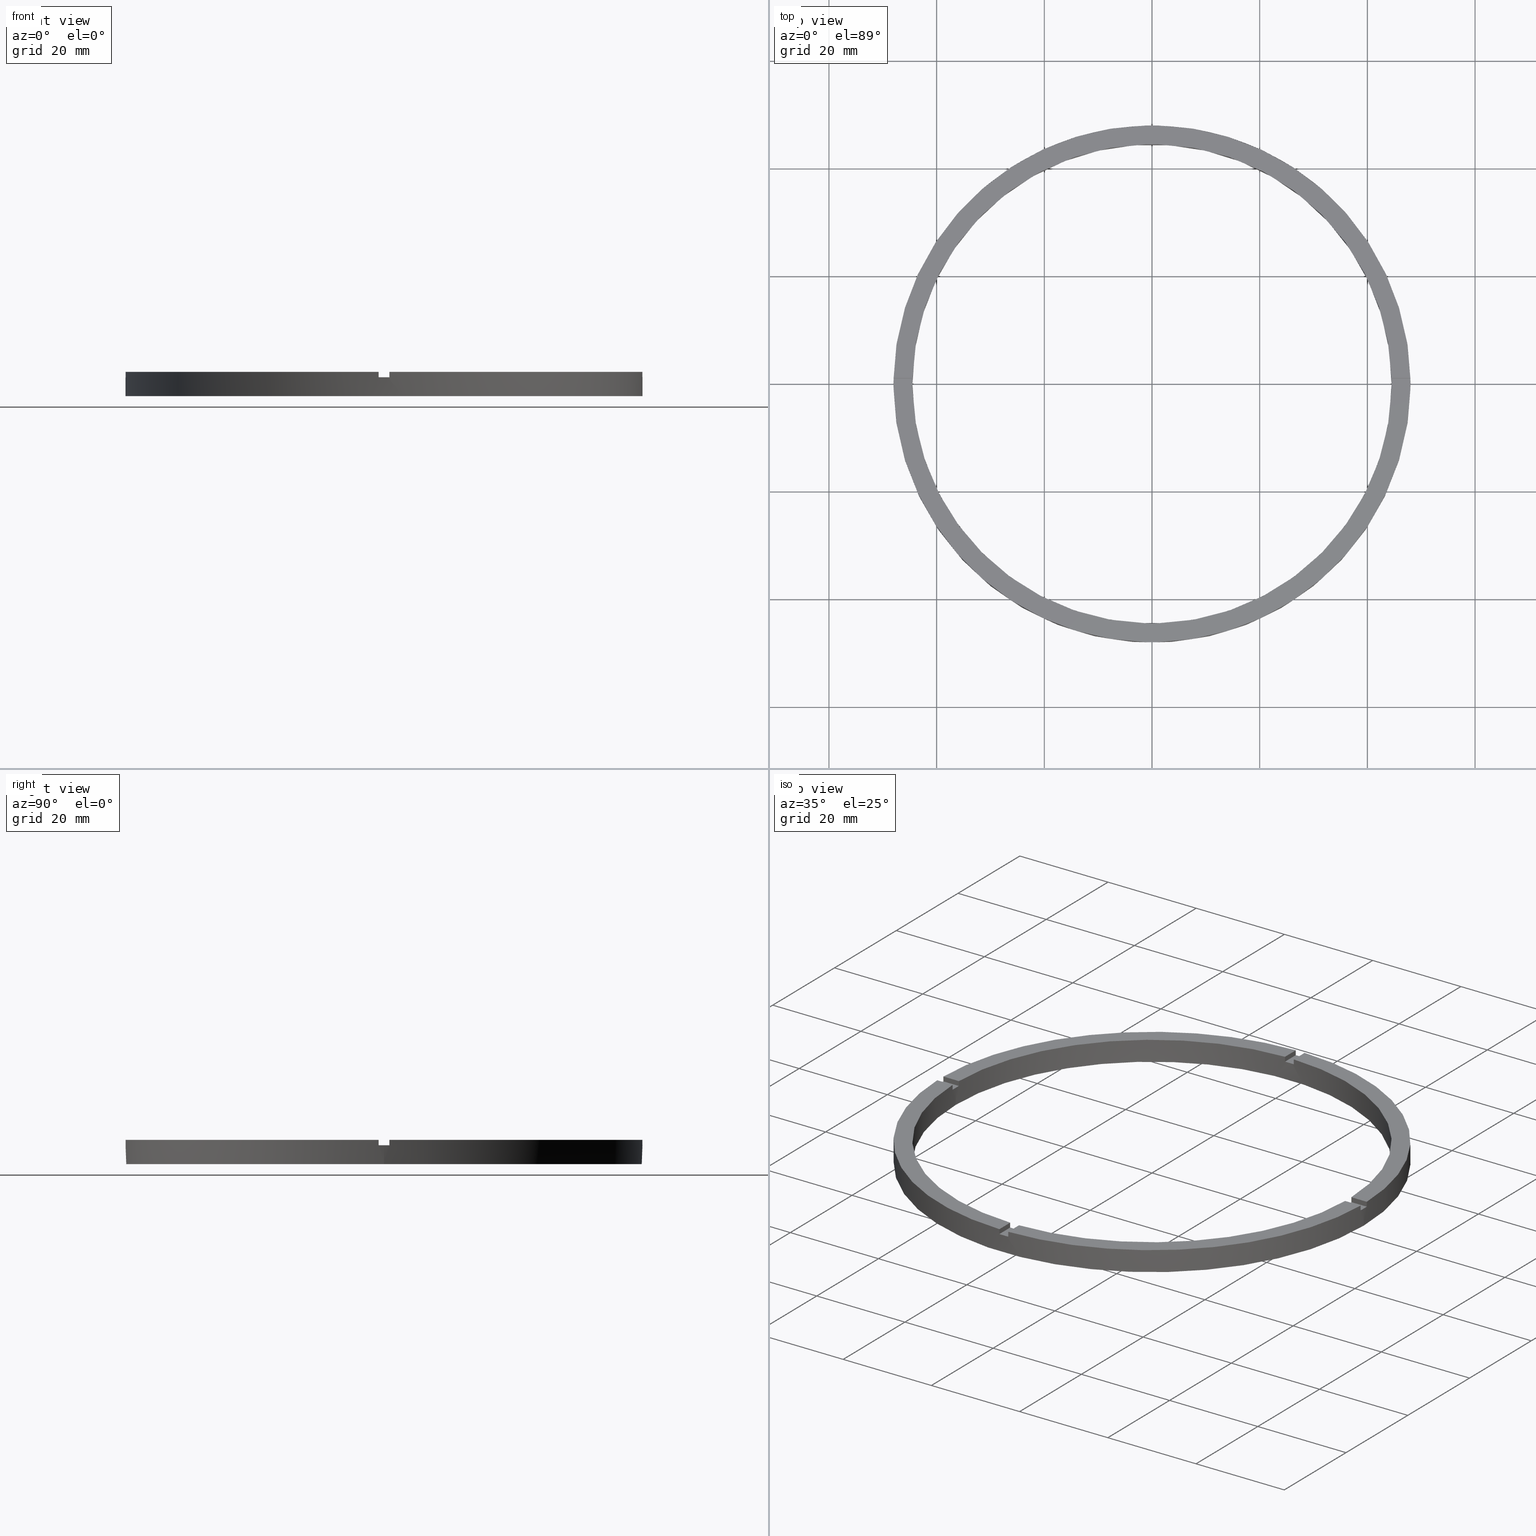
[diagram: canonical four-view strip — front | top / right | iso, engineering-drawing reading convention]
A machine part, canonical four-view strip (front | top / right | iso — engineering-drawing reading convention). The complete STEP part file that produces these views, byte-faithful:
ISO-10303-21;
HEADER;
FILE_DESCRIPTION (( 'STEP AP203' ),
    '1' );
FILE_NAME ('514196.step',
    '2024-12-26T02:46:58',
    ( 'MSI' ),
    ( '' ),
    'SwSTEP 2.0',
    'SolidWorks 2020',
    '' );
FILE_SCHEMA (( 'CONFIG_CONTROL_DESIGN' ));
ENDSEC;

DATA;
#1 = VERTEX_POINT ( 'NONE', #412 ) ;
#2 = EDGE_LOOP ( 'NONE', ( #511, #699, #708, #525 ) ) ;
#3 = CIRCLE ( 'NONE', #638, 48.00000000000000711 ) ;
#4 = VECTOR ( 'NONE', #209, 1000.000000000000000 ) ;
#5 = ORIENTED_EDGE ( 'NONE', *, *, #87, .T. ) ;
#6 = VECTOR ( 'NONE', #133, 1000.000000000000000 ) ;
#7 = CC_DESIGN_PERSON_AND_ORGANIZATION_ASSIGNMENT ( #325, #131, ( #144 ) ) ;
#8 = CARTESIAN_POINT ( 'NONE',  ( 38.00000000000000000, -1.000000000000156097, 4.500000000000000000 ) ) ;
#9 = ORIENTED_EDGE ( 'NONE', *, *, #677, .T. ) ;
#10 = CARTESIAN_POINT ( 'NONE',  ( 0.000000000000000000, 0.000000000000000000, 4.500000000000000000 ) ) ;
#11 = EDGE_LOOP ( 'NONE', ( #658, #297, #229, #662, #458, #395, #508, #664, #455, #175, #448, #484 ) ) ;
#12 = PERSON_AND_ORGANIZATION ( #84, #327 ) ;
#13 = ORIENTED_EDGE ( 'NONE', *, *, #40, .T. ) ;
#14 = CARTESIAN_POINT ( 'NONE',  ( -1.000000000000158540, -38.00000000000018474, 3.499999999999999556 ) ) ;
#15 = DIRECTION ( 'NONE',  ( 1.951563910473907735E-16, -1.000000000000000000, 0.000000000000000000 ) ) ;
#16 = APPROVAL_PERSON_ORGANIZATION ( #12, #258, #380 ) ;
#17 = CALENDAR_DATE ( 2024, 26, 12 ) ;
#18 = VERTEX_POINT ( 'NONE', #692 ) ;
#19 = EDGE_LOOP ( 'NONE', ( #34, #422, #546, #720 ) ) ;
#20 = DIRECTION ( 'NONE',  ( 0.000000000000000000, 0.000000000000000000, 1.000000000000000000 ) ) ;
#21 = EDGE_CURVE ( 'NONE', #555, #523, #159, .T. ) ;
#22 = DATE_AND_TIME ( #295, #560 ) ;
#23 = COORDINATED_UNIVERSAL_TIME_OFFSET ( 8, 0, .AHEAD. ) ;
#24 = ORIENTED_EDGE ( 'NONE', *, *, #564, .F. ) ;
#25 = ORIENTED_EDGE ( 'NONE', *, *, #315, .T. ) ;
#26 = CARTESIAN_POINT ( 'NONE',  ( 48.00000000000000711, 5.878304635907296578E-15, 4.500000000000000000 ) ) ;
#27 = EDGE_LOOP ( 'NONE', ( #485, #566, #305, #205 ) ) ;
#28 = PERSON_AND_ORGANIZATION_ROLE ( 'creator' ) ;
#29 = CARTESIAN_POINT ( 'NONE',  ( 0.9999999999998423483, -44.48876262608346366, 3.499999999999999556 ) ) ;
#30 = VERTEX_POINT ( 'NONE', #751 ) ;
#31 = FACE_OUTER_BOUND ( 'NONE', #519, .T. ) ;
#32 = DIRECTION ( 'NONE',  ( -6.505213034913025371E-17, 1.000000000000000000, 0.000000000000000000 ) ) ;
#33 = PERSON_AND_ORGANIZATION ( #84, #327 ) ;
#34 = ORIENTED_EDGE ( 'NONE', *, *, #103, .F. ) ;
#35 = LINE ( 'NONE', #26, #320 ) ;
#36 = APPROVAL_PERSON_ORGANIZATION ( #307, #645, #342 ) ;
#37 = ORIENTED_EDGE ( 'NONE', *, *, #219, .T. ) ;
#38 = CARTESIAN_POINT ( 'NONE',  ( 0.000000000000000000, 0.000000000000000000, 3.499999999999999556 ) ) ;
#39 = AXIS2_PLACEMENT_3D ( 'NONE', #643, #611, #653 ) ;
#40 = EDGE_CURVE ( 'NONE', #215, #184, #443, .T. ) ;
#41 = APPROVAL_DATE_TIME ( #570, #645 ) ;
#42 = PLANE ( 'NONE',  #499 ) ;
#43 = CALENDAR_DATE ( 2024, 26, 12 ) ;
#44 = DATE_AND_TIME ( #43, #589 ) ;
#45 = CARTESIAN_POINT ( 'NONE',  ( -1.000000000000026423, 38.00000000000000711, 3.499999999999999556 ) ) ;
#46 = DIRECTION ( 'NONE',  ( 0.000000000000000000, 0.000000000000000000, 1.000000000000000000 ) ) ;
#47 = DIRECTION ( 'NONE',  ( 0.000000000000000000, 0.000000000000000000, 1.000000000000000000 ) ) ;
#48 = SHAPE_DEFINITION_REPRESENTATION ( #310, #568 ) ;
#49 = DIRECTION ( 'NONE',  ( 1.000000000000000000, 0.000000000000000000, 0.000000000000000000 ) ) ;
#50 = EDGE_CURVE ( 'NONE', #482, #127, #700, .T. ) ;
#51 = CARTESIAN_POINT ( 'NONE',  ( -1.000000000000157208, -47.98958220280731268, 4.500000000000000000 ) ) ;
#52 = DIRECTION ( 'NONE',  ( 1.000000000000000000, 6.505213034913025371E-17, 0.000000000000000000 ) ) ;
#53 = CARTESIAN_POINT ( 'NONE',  ( -1.000000000000026423, 44.48876262608345655, 4.500000000000000000 ) ) ;
#54 = DIRECTION ( 'NONE',  ( 0.000000000000000000, 0.000000000000000000, 1.000000000000000000 ) ) ;
#55 = DIRECTION ( 'NONE',  ( -0.000000000000000000, -1.000000000000000000, -0.000000000000000000 ) ) ;
#56 = EDGE_CURVE ( 'NONE', #729, #18, #445, .T. ) ;
#57 = PERSON_AND_ORGANIZATION ( #84, #327 ) ;
#58 = CALENDAR_DATE ( 2024, 26, 12 ) ;
#59 = DIRECTION ( 'NONE',  ( 1.301042606982605074E-16, -1.000000000000000000, 0.000000000000000000 ) ) ;
#60 = DATE_AND_TIME ( #58, #604 ) ;
#61 = DIRECTION ( 'NONE',  ( -1.000000000000000000, 0.000000000000000000, 0.000000000000000000 ) ) ;
#62 = DIRECTION ( 'NONE',  ( -1.000000000000000000, -6.505213034913025371E-17, -0.000000000000000000 ) ) ;
#63 = CARTESIAN_POINT ( 'NONE',  ( 0.000000000000000000, 0.000000000000000000, 4.500000000000000000 ) ) ;
#64 = CARTESIAN_POINT ( 'NONE',  ( -1.000000000000026423, 47.98958220280731268, 4.500000000000000000 ) ) ;
#65 = ADVANCED_FACE ( 'NONE', ( #476 ), #726, .F. ) ;
#66 = AXIS2_PLACEMENT_3D ( 'NONE', #153, #676, #228 ) ;
#67 = CARTESIAN_POINT ( 'NONE',  ( -47.98958220280731268, 0.9999999999999692468, 4.500000000000000000 ) ) ;
#68 = PLANE ( 'NONE',  #148 ) ;
#69 = CARTESIAN_POINT ( 'NONE',  ( 44.48876262608346366, 0.9999999999998443467, 4.500000000000000000 ) ) ;
#70 = CARTESIAN_POINT ( 'NONE',  ( 0.000000000000000000, 0.000000000000000000, 0.000000000000000000 ) ) ;
#71 = DIRECTION ( 'NONE',  ( -1.000000000000000000, -6.505213034913025371E-17, 0.000000000000000000 ) ) ;
#72 = CC_DESIGN_APPROVAL ( #563, ( #359 ) ) ;
#73 = EDGE_CURVE ( 'NONE', #731, #1, #468, .T. ) ;
#74 = DIRECTION ( 'NONE',  ( -0.000000000000000000, -0.000000000000000000, -1.000000000000000000 ) ) ;
#75 = EDGE_CURVE ( 'NONE', #165, #482, #181, .T. ) ;
#76 = DIRECTION ( 'NONE',  ( -0.000000000000000000, -0.000000000000000000, -1.000000000000000000 ) ) ;
#77 = DIRECTION ( 'NONE',  ( 0.000000000000000000, 0.000000000000000000, 1.000000000000000000 ) ) ;
#78 = ADVANCED_FACE ( 'NONE', ( #481 ), #194, .T. ) ;
#79 = VECTOR ( 'NONE', #678, 1000.000000000000000 ) ;
#80 = AXIS2_PLACEMENT_3D ( 'NONE', #495, #147, #408 ) ;
#81 = PLANE ( 'NONE',  #616 ) ;
#82 = EDGE_CURVE ( 'NONE', #210, #184, #479, .T. ) ;
#83 = VECTOR ( 'NONE', #435, 1000.000000000000000 ) ;
#84 = PERSON ( 'δָ��', 'δָ��', 'δָ��', ('δָ��'), ('δָ��'), ('δָ��') ) ;
#85 = VECTOR ( 'NONE', #574, 1000.000000000000000 ) ;
#86 = CARTESIAN_POINT ( 'NONE',  ( -44.48876262608345655, 0.9999999999999699130, 4.500000000000000000 ) ) ;
#87 = EDGE_CURVE ( 'NONE', #139, #559, #112, .T. ) ;
#88 = DIRECTION ( 'NONE',  ( -0.000000000000000000, -0.000000000000000000, -1.000000000000000000 ) ) ;
#89 = DIRECTION ( 'NONE',  ( 1.000000000000000000, 1.301042606982605074E-16, 0.000000000000000000 ) ) ;
#90 = AXIS2_PLACEMENT_3D ( 'NONE', #230, #317, #500 ) ;
#91 = PLANE ( 'NONE',  #667 ) ;
#92 = DIRECTION ( 'NONE',  ( 1.000000000000000000, 0.000000000000000000, 0.000000000000000000 ) ) ;
#93 = CARTESIAN_POINT ( 'NONE',  ( 0.000000000000000000, 0.000000000000000000, 0.000000000000000000 ) ) ;
#94 = AXIS2_PLACEMENT_3D ( 'NONE', #417, #719, #426 ) ;
#95 = CARTESIAN_POINT ( 'NONE',  ( 0.9999999999998423483, -44.48876262608346366, 4.500000000000000000 ) ) ;
#96 = CIRCLE ( 'NONE', #736, 48.00000000000000711 ) ;
#97 = DIRECTION ( 'NONE',  ( 0.000000000000000000, 0.000000000000000000, 1.000000000000000000 ) ) ;
#98 = CARTESIAN_POINT ( 'NONE',  ( 38.00000000000000000, 0.9999999999998439026, 3.499999999999999556 ) ) ;
#99 = LINE ( 'NONE', #115, #374 ) ;
#100 = EDGE_CURVE ( 'NONE', #18, #252, #665, .T. ) ;
#101 = DIRECTION ( 'NONE',  ( -1.951563910473907735E-16, 1.000000000000000000, 0.000000000000000000 ) ) ;
#102 = VECTOR ( 'NONE', #185, 1000.000000000000000 ) ;
#103 = EDGE_CURVE ( 'NONE', #215, #155, #385, .T. ) ;
#104 = DIRECTION ( 'NONE',  ( 1.000000000000000000, 0.000000000000000000, 0.000000000000000000 ) ) ;
#105 = CIRCLE ( 'NONE', #351, 48.00000000000000711 ) ;
#106 = PLANE ( 'NONE',  #281 ) ;
#107 = FACE_OUTER_BOUND ( 'NONE', #393, .T. ) ;
#108 = LINE ( 'NONE', #335, #83 ) ;
#109 = CARTESIAN_POINT ( 'NONE',  ( -38.00000000000019185, -1.000000000000028866, 3.499999999999999556 ) ) ;
#110 = DIRECTION ( 'NONE',  ( -1.000000000000000000, -1.951563910473907735E-16, 0.000000000000000000 ) ) ;
#111 = EDGE_CURVE ( 'NONE', #778, #449, #394, .T. ) ;
#112 = LINE ( 'NONE', #109, #399 ) ;
#113 = CIRCLE ( 'NONE', #639, 48.00000000000000711 ) ;
#114 = AXIS2_PLACEMENT_3D ( 'NONE', #670, #722, #367 ) ;
#115 = CARTESIAN_POINT ( 'NONE',  ( -1.000000000000158540, -38.00000000000018474, 4.500000000000000000 ) ) ;
#116 = ADVANCED_FACE ( 'NONE', ( #128 ), #264, .T. ) ;
#117 = FACE_OUTER_BOUND ( 'NONE', #257, .T. ) ;
#118 = ORIENTED_EDGE ( 'NONE', *, *, #591, .T. ) ;
#119 = CARTESIAN_POINT ( 'NONE',  ( -47.98958220280731268, -1.000000000000030864, 4.500000000000000000 ) ) ;
#120 = FACE_OUTER_BOUND ( 'NONE', #698, .T. ) ;
#121 = EDGE_LOOP ( 'NONE', ( #452, #25, #269, #573 ) ) ;
#122 = FACE_OUTER_BOUND ( 'NONE', #739, .T. ) ;
#123 = ORIENTED_EDGE ( 'NONE', *, *, #21, .T. ) ;
#124 = EDGE_CURVE ( 'NONE', #557, #165, #403, .T. ) ;
#125 = LINE ( 'NONE', #224, #660 ) ;
#126 = VECTOR ( 'NONE', #352, 1000.000000000000000 ) ;
#127 = VERTEX_POINT ( 'NONE', #684 ) ;
#128 = FACE_OUTER_BOUND ( 'NONE', #492, .T. ) ;
#129 = CC_DESIGN_PERSON_AND_ORGANIZATION_ASSIGNMENT ( #299, #536, ( #474 ) ) ;
#130 = DIRECTION ( 'NONE',  ( -1.000000000000000000, 0.000000000000000000, 0.000000000000000000 ) ) ;
#131 = PERSON_AND_ORGANIZATION_ROLE ( 'design_owner' ) ;
#132 = DIRECTION ( 'NONE',  ( -0.000000000000000000, 0.000000000000000000, 1.000000000000000000 ) ) ;
#133 = DIRECTION ( 'NONE',  ( -1.000000000000000000, -1.951563910473907735E-16, 0.000000000000000000 ) ) ;
#134 = CARTESIAN_POINT ( 'NONE',  ( 47.98958220280731979, 0.9999999999998445688, 3.499999999999999556 ) ) ;
#135 = PLANE ( 'NONE',  #640 ) ;
#136 = DIRECTION ( 'NONE',  ( 6.505213034913025371E-17, -1.000000000000000000, 0.000000000000000000 ) ) ;
#137 = CARTESIAN_POINT ( 'NONE',  ( 0.000000000000000000, 0.000000000000000000, 4.500000000000000000 ) ) ;
#138 = AXIS2_PLACEMENT_3D ( 'NONE', #636, #179, #192 ) ;
#139 = VERTEX_POINT ( 'NONE', #245 ) ;
#140 = DIRECTION ( 'NONE',  ( -0.000000000000000000, -0.000000000000000000, -1.000000000000000000 ) ) ;
#141 = EDGE_LOOP ( 'NONE', ( #223, #167, #178, #453, #514, #150, #478, #762, #464, #217, #733, #752 ) ) ;
#142 = DIRECTION ( 'NONE',  ( 1.000000000000000000, 0.000000000000000000, -0.000000000000000000 ) ) ;
#143 = AXIS2_PLACEMENT_3D ( 'NONE', #732, #430, #747 ) ;
#144 = PRODUCT ( '514196', '514196', '', ( #522 ) ) ;
#145 = DIRECTION ( 'NONE',  ( 1.000000000000000000, 0.000000000000000000, 0.000000000000000000 ) ) ;
#146 = PERSON_AND_ORGANIZATION_ROLE ( 'design_supplier' ) ;
#147 = DIRECTION ( 'NONE',  ( 0.000000000000000000, 0.000000000000000000, 1.000000000000000000 ) ) ;
#148 = AXIS2_PLACEMENT_3D ( 'NONE', #520, #15, #595 ) ;
#149 = CARTESIAN_POINT ( 'NONE',  ( 0.000000000000000000, 0.000000000000000000, 3.499999999999999556 ) ) ;
#150 = ORIENTED_EDGE ( 'NONE', *, *, #578, .T. ) ;
#151 = MANIFOLD_SOLID_BREP ( '�г�-����1', #275 ) ;
#152 = ORIENTED_EDGE ( 'NONE', *, *, #344, .T. ) ;
#153 = CARTESIAN_POINT ( 'NONE',  ( 0.000000000000000000, 0.000000000000000000, 0.000000000000000000 ) ) ;
#154 = PLANE ( 'NONE',  #411 ) ;
#155 = VERTEX_POINT ( 'NONE', #444 ) ;
#156 = CC_DESIGN_DATE_AND_TIME_ASSIGNMENT ( #44, #535, ( #682 ) ) ;
#157 = EDGE_CURVE ( 'NONE', #1, #731, #388, .T. ) ;
#158 = DIRECTION ( 'NONE',  ( -1.000000000000000000, 0.000000000000000000, 0.000000000000000000 ) ) ;
#159 = LINE ( 'NONE', #53, #161 ) ;
#160 = DIRECTION ( 'NONE',  ( 0.000000000000000000, 0.000000000000000000, 1.000000000000000000 ) ) ;
#161 = VECTOR ( 'NONE', #140, 1000.000000000000000 ) ;
#162 = DIRECTION ( 'NONE',  ( -0.000000000000000000, -0.000000000000000000, -1.000000000000000000 ) ) ;
#163 = CARTESIAN_POINT ( 'NONE',  ( -38.00000000000019185, 0.9999999999999711342, 4.500000000000000000 ) ) ;
#164 = VECTOR ( 'NONE', #423, 1000.000000000000000 ) ;
#165 = VERTEX_POINT ( 'NONE', #370 ) ;
#166 = VERTEX_POINT ( 'NONE', #332 ) ;
#167 = ORIENTED_EDGE ( 'NONE', *, *, #723, .T. ) ;
#168 = ORIENTED_EDGE ( 'NONE', *, *, #100, .T. ) ;
#169 = ORIENTED_EDGE ( 'NONE', *, *, #615, .F. ) ;
#170 = EDGE_LOOP ( 'NONE', ( #738, #685, #470, #548 ) ) ;
#171 = EDGE_CURVE ( 'NONE', #491, #559, #663, .T. ) ;
#172 = ORIENTED_EDGE ( 'NONE', *, *, #259, .T. ) ;
#173 = PLANE ( 'NONE',  #697 ) ;
#174 = ORIENTED_EDGE ( 'NONE', *, *, #564, .T. ) ;
#175 = ORIENTED_EDGE ( 'NONE', *, *, #646, .F. ) ;
#176 = ORIENTED_EDGE ( 'NONE', *, *, #300, .F. ) ;
#177 = EDGE_CURVE ( 'NONE', #429, #462, #113, .T. ) ;
#178 = ORIENTED_EDGE ( 'NONE', *, *, #282, .F. ) ;
#179 = DIRECTION ( 'NONE',  ( 0.000000000000000000, 0.000000000000000000, 1.000000000000000000 ) ) ;
#180 = ORIENTED_EDGE ( 'NONE', *, *, #75, .F. ) ;
#181 = CIRCLE ( 'NONE', #287, 44.50000000000000711 ) ;
#182 = DIRECTION ( 'NONE',  ( -1.000000000000000000, -6.505213034913025371E-17, -0.000000000000000000 ) ) ;
#183 = ORIENTED_EDGE ( 'NONE', *, *, #442, .T. ) ;
#184 = VERTEX_POINT ( 'NONE', #29 ) ;
#185 = DIRECTION ( 'NONE',  ( -0.000000000000000000, -0.000000000000000000, -1.000000000000000000 ) ) ;
#186 = ORIENTED_EDGE ( 'NONE', *, *, #683, .T. ) ;
#187 = ORIENTED_EDGE ( 'NONE', *, *, #267, .T. ) ;
#188 = DATE_TIME_ROLE ( 'creation_date' ) ;
#189 = CARTESIAN_POINT ( 'NONE',  ( 48.00000000000000711, 5.878304635907296578E-15, 3.499999999999999556 ) ) ;
#190 =( LENGTH_UNIT ( ) NAMED_UNIT ( * ) SI_UNIT ( .MILLI., .METRE. ) );
#191 = ORIENTED_EDGE ( 'NONE', *, *, #157, .F. ) ;
#192 = DIRECTION ( 'NONE',  ( 1.000000000000000000, 0.000000000000000000, -0.000000000000000000 ) ) ;
#193 = ADVANCED_FACE ( 'NONE', ( #659 ), #392, .F. ) ;
#194 = CYLINDRICAL_SURFACE ( 'NONE', #386, 48.00000000000000711 ) ;
#195 = ORIENTED_EDGE ( 'NONE', *, *, #505, .T. ) ;
#196 = VERTEX_POINT ( 'NONE', #189 ) ;
#197 = AXIS2_PLACEMENT_3D ( 'NONE', #70, #160, #235 ) ;
#198 = ORIENTED_EDGE ( 'NONE', *, *, #748, .F. ) ;
#199 =( NAMED_UNIT ( * ) PLANE_ANGLE_UNIT ( ) SI_UNIT ( $, .RADIAN. ) );
#200 = ORIENTED_EDGE ( 'NONE', *, *, #344, .F. ) ;
#201 = VERTEX_POINT ( 'NONE', #86 ) ;
#202 = ADVANCED_FACE ( 'NONE', ( #117 ), #641, .F. ) ;
#203 = CARTESIAN_POINT ( 'NONE',  ( 0.9999999999999735767, 38.00000000000000711, 3.499999999999999556 ) ) ;
#204 = ORIENTED_EDGE ( 'NONE', *, *, #50, .F. ) ;
#205 = ORIENTED_EDGE ( 'NONE', *, *, #103, .T. ) ;
#206 = CARTESIAN_POINT ( 'NONE',  ( -1.000000000000026423, 44.48876262608345655, 4.500000000000000000 ) ) ;
#207 = ORIENTED_EDGE ( 'NONE', *, *, #82, .F. ) ;
#208 = EDGE_LOOP ( 'NONE', ( #187, #168 ) ) ;
#209 = DIRECTION ( 'NONE',  ( -0.000000000000000000, -0.000000000000000000, -1.000000000000000000 ) ) ;
#210 = VERTEX_POINT ( 'NONE', #774 ) ;
#211 = CC_DESIGN_APPROVAL ( #645, ( #474 ) ) ;
#212 = EDGE_CURVE ( 'NONE', #742, #709, #389, .T. ) ;
#213 = CARTESIAN_POINT ( 'NONE',  ( 44.48876262608346366, 0.9999999999998443467, 3.499999999999999556 ) ) ;
#214 = DIRECTION ( 'NONE',  ( 0.000000000000000000, 0.000000000000000000, 1.000000000000000000 ) ) ;
#215 = VERTEX_POINT ( 'NONE', #661 ) ;
#216 = DIRECTION ( 'NONE',  ( 1.000000000000000000, 0.000000000000000000, -0.000000000000000000 ) ) ;
#217 = ORIENTED_EDGE ( 'NONE', *, *, #584, .T. ) ;
#218 = DIRECTION ( 'NONE',  ( -0.000000000000000000, -1.000000000000000000, -0.000000000000000000 ) ) ;
#219 = EDGE_CURVE ( 'NONE', #778, #498, #657, .T. ) ;
#220 = CARTESIAN_POINT ( 'NONE',  ( 0.000000000000000000, 0.000000000000000000, 4.500000000000000000 ) ) ;
#221 = CARTESIAN_POINT ( 'NONE',  ( 44.48876262608345655, -1.000000000000155653, 4.500000000000000000 ) ) ;
#222 = VECTOR ( 'NONE', #350, 1000.000000000000000 ) ;
#223 = ORIENTED_EDGE ( 'NONE', *, *, #56, .F. ) ;
#224 = CARTESIAN_POINT ( 'NONE',  ( -38.00000000000019185, -1.000000000000028866, 4.500000000000000000 ) ) ;
#225 = VECTOR ( 'NONE', #110, 1000.000000000000000 ) ;
#226 = CIRCLE ( 'NONE', #324, 48.00000000000000711 ) ;
#227 = FACE_OUTER_BOUND ( 'NONE', #263, .T. ) ;
#228 = DIRECTION ( 'NONE',  ( 1.000000000000000000, 0.000000000000000000, 0.000000000000000000 ) ) ;
#229 = ORIENTED_EDGE ( 'NONE', *, *, #629, .T. ) ;
#230 = CARTESIAN_POINT ( 'NONE',  ( 0.000000000000000000, 0.000000000000000000, 4.500000000000000000 ) ) ;
#231 = CIRCLE ( 'NONE', #238, 48.00000000000000711 ) ;
#232 = AXIS2_PLACEMENT_3D ( 'NONE', #93, #415, #428 ) ;
#233 = LINE ( 'NONE', #98, #534 ) ;
#234 = ADVANCED_FACE ( 'NONE', ( #122 ), #613, .T. ) ;
#235 = DIRECTION ( 'NONE',  ( 1.000000000000000000, 0.000000000000000000, 0.000000000000000000 ) ) ;
#236 = VECTOR ( 'NONE', #759, 1000.000000000000000 ) ;
#237 = ORIENTED_EDGE ( 'NONE', *, *, #737, .T. ) ;
#238 = AXIS2_PLACEMENT_3D ( 'NONE', #472, #308, #354 ) ;
#239 = CIRCLE ( 'NONE', #416, 44.50000000000000711 ) ;
#240 = ORIENTED_EDGE ( 'NONE', *, *, #50, .T. ) ;
#241 = EDGE_CURVE ( 'NONE', #429, #30, #125, .T. ) ;
#242 = DIRECTION ( 'NONE',  ( -0.000000000000000000, -0.000000000000000000, -1.000000000000000000 ) ) ;
#243 = VECTOR ( 'NONE', #214, 1000.000000000000000 ) ;
#244 = ORIENTED_EDGE ( 'NONE', *, *, #493, .F. ) ;
#245 = CARTESIAN_POINT ( 'NONE',  ( -47.98958220280731268, -1.000000000000030864, 3.499999999999999556 ) ) ;
#246 = LINE ( 'NONE', #163, #225 ) ;
#247 = EDGE_LOOP ( 'NONE', ( #718, #273, #714, #280 ) ) ;
#248 = ADVANCED_FACE ( 'NONE', ( #120 ), #707, .F. ) ;
#249 = LINE ( 'NONE', #488, #531 ) ;
#250 = EDGE_LOOP ( 'NONE', ( #743, #152, #466, #266 ) ) ;
#251 = LINE ( 'NONE', #606, #761 ) ;
#252 = VERTEX_POINT ( 'NONE', #650 ) ;
#253 = VECTOR ( 'NONE', #88, 1000.000000000000000 ) ;
#254 = CARTESIAN_POINT ( 'NONE',  ( 38.00000000000000000, 0.9999999999998439026, 4.500000000000000000 ) ) ;
#255 = FACE_BOUND ( 'NONE', #208, .T. ) ;
#256 = DIRECTION ( 'NONE',  ( -0.000000000000000000, 0.000000000000000000, 1.000000000000000000 ) ) ;
#257 = EDGE_LOOP ( 'NONE', ( #542, #289, #207, #725 ) ) ;
#258 = APPROVAL ( #337, 'δָ��' ) ;
#259 = EDGE_CURVE ( 'NONE', #490, #523, #361, .T. ) ;
#260 = LINE ( 'NONE', #356, #545 ) ;
#261 = VERTEX_POINT ( 'NONE', #309 ) ;
#262 = CIRCLE ( 'NONE', #675, 44.50000000000000711 ) ;
#263 = EDGE_LOOP ( 'NONE', ( #191, #571 ) ) ;
#264 = PLANE ( 'NONE',  #554 ) ;
#265 = LINE ( 'NONE', #353, #771 ) ;
#266 = ORIENTED_EDGE ( 'NONE', *, *, #689, .F. ) ;
#267 = EDGE_CURVE ( 'NONE', #252, #18, #378, .T. ) ;
#268 = PLANE ( 'NONE',  #138 ) ;
#269 = ORIENTED_EDGE ( 'NONE', *, *, #433, .T. ) ;
#270 = LINE ( 'NONE', #711, #253 ) ;
#271 = ORIENTED_EDGE ( 'NONE', *, *, #618, .F. ) ;
#272 = DIRECTION ( 'NONE',  ( 0.000000000000000000, 0.000000000000000000, 1.000000000000000000 ) ) ;
#273 = ORIENTED_EDGE ( 'NONE', *, *, #406, .F. ) ;
#274 = DIRECTION ( 'NONE',  ( 0.000000000000000000, -0.000000000000000000, 1.000000000000000000 ) ) ;
#275 = CLOSED_SHELL ( 'NONE', ( #296, #78, #585, #368, #528, #624, #432, #322, #193, #341, #248, #234, #202, #65, #379, #330, #674, #750, #292, #668, #116 ) ) ;
#276 = EDGE_CURVE ( 'NONE', #498, #1, #649, .T. ) ;
#277 = DIRECTION ( 'NONE',  ( 1.000000000000000000, 0.000000000000000000, 0.000000000000000000 ) ) ;
#278 = VERTEX_POINT ( 'NONE', #507 ) ;
#279 = EDGE_LOOP ( 'NONE', ( #680, #123, #418, #727 ) ) ;
#280 = ORIENTED_EDGE ( 'NONE', *, *, #402, .T. ) ;
#281 = AXIS2_PLACEMENT_3D ( 'NONE', #587, #32, #71 ) ;
#282 = EDGE_CURVE ( 'NONE', #165, #706, #357, .T. ) ;
#283 = COORDINATED_UNIVERSAL_TIME_OFFSET ( 8, 0, .AHEAD. ) ;
#284 = DATE_AND_TIME ( #17, #556 ) ;
#285 =( GEOMETRIC_REPRESENTATION_CONTEXT ( 3 ) GLOBAL_UNCERTAINTY_ASSIGNED_CONTEXT ( ( #302 ) ) GLOBAL_UNIT_ASSIGNED_CONTEXT ( ( #190, #199, #586 ) ) REPRESENTATION_CONTEXT ( 'NONE', 'WORKASPACE' ) );
#286 = DIRECTION ( 'NONE',  ( 1.000000000000000000, -0.000000000000000000, 0.000000000000000000 ) ) ;
#287 = AXIS2_PLACEMENT_3D ( 'NONE', #220, #671, #494 ) ;
#288 = CARTESIAN_POINT ( 'NONE',  ( -44.48876262608345655, -1.000000000000030198, 3.499999999999999556 ) ) ;
#289 = ORIENTED_EDGE ( 'NONE', *, *, #517, .T. ) ;
#290 = DIRECTION ( 'NONE',  ( 1.000000000000000000, 0.000000000000000000, -0.000000000000000000 ) ) ;
#291 = VERTEX_POINT ( 'NONE', #673 ) ;
#292 = ADVANCED_FACE ( 'NONE', ( #633 ), #173, .F. ) ;
#293 = DIRECTION ( 'NONE',  ( 1.000000000000000000, 6.505213034913025371E-17, 0.000000000000000000 ) ) ;
#294 = DIRECTION ( 'NONE',  ( 1.000000000000000000, 0.000000000000000000, 0.000000000000000000 ) ) ;
#295 = CALENDAR_DATE ( 2024, 26, 12 ) ;
#296 = ADVANCED_FACE ( 'NONE', ( #625 ), #371, .F. ) ;
#297 = ORIENTED_EDGE ( 'NONE', *, *, #610, .F. ) ;
#298 = DIRECTION ( 'NONE',  ( 0.000000000000000000, 0.000000000000000000, 1.000000000000000000 ) ) ;
#299 = PERSON_AND_ORGANIZATION ( #84, #327 ) ;
#300 = EDGE_CURVE ( 'NONE', #261, #490, #105, .T. ) ;
#301 = VERTEX_POINT ( 'NONE', #620 ) ;
#302 = UNCERTAINTY_MEASURE_WITH_UNIT (LENGTH_MEASURE( 1.000000000000000082E-05 ), #190, 'distance_accuracy_value', 'NONE');
#303 = CARTESIAN_POINT ( 'NONE',  ( 0.000000000000000000, 0.000000000000000000, 4.500000000000000000 ) ) ;
#304 = DIRECTION ( 'NONE',  ( -1.301042606982605074E-16, 1.000000000000000000, 0.000000000000000000 ) ) ;
#305 = ORIENTED_EDGE ( 'NONE', *, *, #40, .F. ) ;
#306 = CARTESIAN_POINT ( 'NONE',  ( 47.98958220280731979, 0.9999999999998445688, 4.500000000000000000 ) ) ;
#307 = PERSON_AND_ORGANIZATION ( #84, #327 ) ;
#308 = DIRECTION ( 'NONE',  ( 0.000000000000000000, 0.000000000000000000, 1.000000000000000000 ) ) ;
#309 = CARTESIAN_POINT ( 'NONE',  ( 0.9999999999999735767, 47.98958220280731268, 3.499999999999999556 ) ) ;
#310 = PRODUCT_DEFINITION_SHAPE ( 'NONE', 'NONE',  #359 ) ;
#311 = EDGE_CURVE ( 'NONE', #429, #139, #363, .T. ) ;
#312 = LINE ( 'NONE', #338, #318 ) ;
#313 = DIRECTION ( 'NONE',  ( -0.000000000000000000, -0.000000000000000000, -1.000000000000000000 ) ) ;
#314 = DIRECTION ( 'NONE',  ( -0.000000000000000000, -0.000000000000000000, -1.000000000000000000 ) ) ;
#315 = EDGE_CURVE ( 'NONE', #496, #506, #651, .T. ) ;
#316 = DIRECTION ( 'NONE',  ( 1.000000000000000000, 0.000000000000000000, 0.000000000000000000 ) ) ;
#317 = DIRECTION ( 'NONE',  ( 0.000000000000000000, 0.000000000000000000, 1.000000000000000000 ) ) ;
#318 = VECTOR ( 'NONE', #20, 1000.000000000000000 ) ;
#319 = PRODUCT_RELATED_PRODUCT_CATEGORY ( 'detail', '', ( #144 ) ) ;
#320 = VECTOR ( 'NONE', #74, 1000.000000000000000 ) ;
#321 = CARTESIAN_POINT ( 'NONE',  ( 0.9999999999999735767, 38.00000000000000711, 4.500000000000000000 ) ) ;
#322 = ADVANCED_FACE ( 'NONE', ( #635 ), #642, .T. ) ;
#323 = DIRECTION ( 'NONE',  ( 0.000000000000000000, 0.000000000000000000, 1.000000000000000000 ) ) ;
#324 = AXIS2_PLACEMENT_3D ( 'NONE', #480, #550, #469 ) ;
#325 = PERSON_AND_ORGANIZATION ( #84, #327 ) ;
#326 = CARTESIAN_POINT ( 'NONE',  ( 0.9999999999998427924, -47.98958220280731979, 4.500000000000000000 ) ) ;
#327 = ORGANIZATION ( 'δָ��', 'δָ��', '' ) ;
#328 = AXIS2_PLACEMENT_3D ( 'NONE', #10, #76, #130 ) ;
#329 = CARTESIAN_POINT ( 'NONE',  ( 44.48876262608345655, -1.000000000000155653, 4.500000000000000000 ) ) ;
#330 = ADVANCED_FACE ( 'NONE', ( #627 ), #106, .F. ) ;
#331 = COORDINATED_UNIVERSAL_TIME_OFFSET ( 8, 0, .AHEAD. ) ;
#332 = CARTESIAN_POINT ( 'NONE',  ( 47.98958220280731268, -1.000000000000155431, 4.500000000000000000 ) ) ;
#333 = APPROVAL_PERSON_ORGANIZATION ( #601, #563, #746 ) ;
#334 = COORDINATED_UNIVERSAL_TIME_OFFSET ( 8, 0, .AHEAD. ) ;
#335 = CARTESIAN_POINT ( 'NONE',  ( 0.9999999999999735767, 44.48876262608345655, 4.500000000000000000 ) ) ;
#336 = CARTESIAN_POINT ( 'NONE',  ( 48.00000000000000711, 5.878304635907296578E-15, 0.000000000000000000 ) ) ;
#337 = APPROVAL_STATUS ( 'not_yet_approved' ) ;
#338 = CARTESIAN_POINT ( 'NONE',  ( -1.000000000000157652, -44.48876262608345655, 4.500000000000000000 ) ) ;
#339 = APPLICATION_CONTEXT ( 'configuration controlled 3d designs of mechanical parts and assemblies' ) ;
#340 = EDGE_CURVE ( 'NONE', #742, #210, #375, .T. ) ;
#341 = ADVANCED_FACE ( 'NONE', ( #644 ), #68, .F. ) ;
#343 = DIRECTION ( 'NONE',  ( 0.000000000000000000, 0.000000000000000000, -1.000000000000000000 ) ) ;
#342 = APPROVAL_ROLE ( '' ) ;
#344 = EDGE_CURVE ( 'NONE', #437, #449, #96, .T. ) ;
#345 = DIRECTION ( 'NONE',  ( 1.000000000000000000, 0.000000000000000000, -0.000000000000000000 ) ) ;
#346 = CARTESIAN_POINT ( 'NONE',  ( 0.000000000000000000, 0.000000000000000000, 3.499999999999999556 ) ) ;
#347 = CARTESIAN_POINT ( 'NONE',  ( 47.98958220280731268, -1.000000000000155431, 4.500000000000000000 ) ) ;
#348 = DIRECTION ( 'NONE',  ( 0.000000000000000000, -0.000000000000000000, 1.000000000000000000 ) ) ;
#349 = SECURITY_CLASSIFICATION_LEVEL ( 'unclassified' ) ;
#350 = DIRECTION ( 'NONE',  ( 0.000000000000000000, 0.000000000000000000, 1.000000000000000000 ) ) ;
#351 = AXIS2_PLACEMENT_3D ( 'NONE', #358, #581, #730 ) ;
#352 = DIRECTION ( 'NONE',  ( -1.301042606982605074E-16, 1.000000000000000000, -0.000000000000000000 ) ) ;
#353 = CARTESIAN_POINT ( 'NONE',  ( -1.000000000000026423, 47.98958220280731268, 4.500000000000000000 ) ) ;
#354 = DIRECTION ( 'NONE',  ( 1.000000000000000000, 0.000000000000000000, 0.000000000000000000 ) ) ;
#355 = VECTOR ( 'NONE', #365, 1000.000000000000000 ) ;
#356 = CARTESIAN_POINT ( 'NONE',  ( 0.9999999999999735767, 38.00000000000000711, 3.499999999999999556 ) ) ;
#357 = LINE ( 'NONE', #69, #631 ) ;
#358 = CARTESIAN_POINT ( 'NONE',  ( 0.000000000000000000, 0.000000000000000000, 3.499999999999999556 ) ) ;
#359 = PRODUCT_DEFINITION ( 'δ֪', '', #474, #626 ) ;
#360 = EDGE_CURVE ( 'NONE', #278, #462, #99, .T. ) ;
#361 = LINE ( 'NONE', #45, #384 ) ;
#362 = CARTESIAN_POINT ( 'NONE',  ( 0.000000000000000000, 0.000000000000000000, 0.000000000000000000 ) ) ;
#363 = LINE ( 'NONE', #119, #355 ) ;
#364 = CARTESIAN_POINT ( 'NONE',  ( 0.000000000000000000, 0.000000000000000000, 0.000000000000000000 ) ) ;
#365 = DIRECTION ( 'NONE',  ( -0.000000000000000000, -0.000000000000000000, -1.000000000000000000 ) ) ;
#366 = CARTESIAN_POINT ( 'NONE',  ( 44.50000000000000711, 5.449678256205721981E-15, 4.500000000000000000 ) ) ;
#367 = DIRECTION ( 'NONE',  ( -1.000000000000000000, 0.000000000000000000, 0.000000000000000000 ) ) ;
#368 = ADVANCED_FACE ( 'NONE', ( #107 ), #268, .T. ) ;
#369 = EDGE_CURVE ( 'NONE', #155, #210, #381, .T. ) ;
#370 = CARTESIAN_POINT ( 'NONE',  ( 44.48876262608346366, 0.9999999999998443467, 4.500000000000000000 ) ) ;
#371 = CYLINDRICAL_SURFACE ( 'NONE', #114, 44.50000000000000711 ) ;
#372 = CARTESIAN_POINT ( 'NONE',  ( 0.000000000000000000, 0.000000000000000000, 4.500000000000000000 ) ) ;
#373 = EDGE_CURVE ( 'NONE', #687, #482, #108, .T. ) ;
#374 = VECTOR ( 'NONE', #599, 1000.000000000000000 ) ;
#375 = LINE ( 'NONE', #326, #102 ) ;
#376 = CARTESIAN_POINT ( 'NONE',  ( 0.000000000000000000, 0.000000000000000000, 3.499999999999999556 ) ) ;
#377 = DIRECTION ( 'NONE',  ( -0.000000000000000000, 0.000000000000000000, 1.000000000000000000 ) ) ;
#378 = CIRCLE ( 'NONE', #232, 44.50000000000000711 ) ;
#379 = ADVANCED_FACE ( 'NONE', ( #541 ), #681, .T. ) ;
#380 = APPROVAL_ROLE ( '' ) ;
#381 = CIRCLE ( 'NONE', #637, 48.00000000000000711 ) ;
#382 = APPLICATION_PROTOCOL_DEFINITION ( 'international standard', 'config_control_design', 1994, #339 ) ;
#383 = APPROVAL_STATUS ( 'not_yet_approved' ) ;
#384 = VECTOR ( 'NONE', #218, 1000.000000000000000 ) ;
#385 = LINE ( 'NONE', #14, #396 ) ;
#386 = AXIS2_PLACEMENT_3D ( 'NONE', #63, #313, #61 ) ;
#387 = CARTESIAN_POINT ( 'NONE',  ( 0.000000000000000000, 0.000000000000000000, 4.500000000000000000 ) ) ;
#388 = CIRCLE ( 'NONE', #197, 48.00000000000000711 ) ;
#389 = LINE ( 'NONE', #607, #126 ) ;
#390 = CARTESIAN_POINT ( 'NONE',  ( -47.98958220280731268, 0.9999999999999692468, 3.499999999999999556 ) ) ;
#391 = ORIENTED_EDGE ( 'NONE', *, *, #241, .F. ) ;
#392 = CYLINDRICAL_SURFACE ( 'NONE', #328, 44.50000000000000711 ) ;
#393 = EDGE_LOOP ( 'NONE', ( #204, #180, #712, #693 ) ) ;
#394 = LINE ( 'NONE', #67, #654 ) ;
#395 = ORIENTED_EDGE ( 'NONE', *, *, #369, .F. ) ;
#396 = VECTOR ( 'NONE', #59, 1000.000000000000000 ) ;
#397 = ORIENTED_EDGE ( 'NONE', *, *, #177, .T. ) ;
#398 = CARTESIAN_POINT ( 'NONE',  ( -44.48876262608345655, 0.9999999999999699130, 4.500000000000000000 ) ) ;
#399 = VECTOR ( 'NONE', #502, 1000.000000000000000 ) ;
#400 = DIRECTION ( 'NONE',  ( 0.000000000000000000, 0.000000000000000000, 1.000000000000000000 ) ) ;
#401 = CC_DESIGN_DATE_AND_TIME_ASSIGNMENT ( #22, #188, ( #359 ) ) ;
#402 = EDGE_CURVE ( 'NONE', #742, #166, #538, .T. ) ;
#403 = LINE ( 'NONE', #254, #666 ) ;
#404 = VECTOR ( 'NONE', #619, 1000.000000000000000 ) ;
#405 = CARTESIAN_POINT ( 'NONE',  ( -44.48876262608345655, -1.000000000000030198, 4.500000000000000000 ) ) ;
#406 = EDGE_CURVE ( 'NONE', #709, #506, #512, .T. ) ;
#407 = CARTESIAN_POINT ( 'NONE',  ( -38.00000000000019185, 0.9999999999999711342, 3.499999999999999556 ) ) ;
#408 = DIRECTION ( 'NONE',  ( 1.000000000000000000, 0.000000000000000000, 0.000000000000000000 ) ) ;
#409 = CARTESIAN_POINT ( 'NONE',  ( 0.000000000000000000, 0.000000000000000000, 4.500000000000000000 ) ) ;
#410 = CC_DESIGN_SECURITY_CLASSIFICATION ( #682, ( #474 ) ) ;
#411 = AXIS2_PLACEMENT_3D ( 'NONE', #364, #621, #425 ) ;
#412 = CARTESIAN_POINT ( 'NONE',  ( -48.00000000000000711, 0.000000000000000000, 0.000000000000000000 ) ) ;
#413 = DIRECTION ( 'NONE',  ( -0.000000000000000000, -0.000000000000000000, -1.000000000000000000 ) ) ;
#414 = CARTESIAN_POINT ( 'NONE',  ( 0.9999999999999735767, 47.98958220280731268, 4.500000000000000000 ) ) ;
#415 = DIRECTION ( 'NONE',  ( 0.000000000000000000, 0.000000000000000000, 1.000000000000000000 ) ) ;
#416 = AXIS2_PLACEMENT_3D ( 'NONE', #409, #648, #705 ) ;
#417 = CARTESIAN_POINT ( 'NONE',  ( -1.000000000000158540, -38.00000000000018474, 3.499999999999999556 ) ) ;
#418 = ORIENTED_EDGE ( 'NONE', *, *, #259, .F. ) ;
#419 = CARTESIAN_POINT ( 'NONE',  ( 38.00000000000000000, -1.000000000000156097, 3.499999999999999556 ) ) ;
#420 = DIRECTION ( 'NONE',  ( -0.000000000000000000, -0.000000000000000000, -1.000000000000000000 ) ) ;
#421 = AXIS2_PLACEMENT_3D ( 'NONE', #572, #427, #104 ) ;
#422 = ORIENTED_EDGE ( 'NONE', *, *, #748, .T. ) ;
#423 = DIRECTION ( 'NONE',  ( 0.000000000000000000, 1.000000000000000000, 0.000000000000000000 ) ) ;
#424 = ORIENTED_EDGE ( 'NONE', *, *, #584, .F. ) ;
#425 = DIRECTION ( 'NONE',  ( 1.000000000000000000, 0.000000000000000000, -0.000000000000000000 ) ) ;
#426 = DIRECTION ( 'NONE',  ( 1.301042606982605074E-16, -1.000000000000000000, 0.000000000000000000 ) ) ;
#427 = DIRECTION ( 'NONE',  ( 0.000000000000000000, 0.000000000000000000, 1.000000000000000000 ) ) ;
#428 = DIRECTION ( 'NONE',  ( 1.000000000000000000, 0.000000000000000000, 0.000000000000000000 ) ) ;
#429 = VERTEX_POINT ( 'NONE', #728 ) ;
#430 = DIRECTION ( 'NONE',  ( 0.000000000000000000, 0.000000000000000000, 1.000000000000000000 ) ) ;
#431 = ORIENTED_EDGE ( 'NONE', *, *, #517, .F. ) ;
#432 = ADVANCED_FACE ( 'NONE', ( #227, #255 ), #154, .F. ) ;
#433 = EDGE_CURVE ( 'NONE', #506, #166, #758, .T. ) ;
#434 = ORIENTED_EDGE ( 'NONE', *, *, #300, .T. ) ;
#435 = DIRECTION ( 'NONE',  ( 0.000000000000000000, 0.000000000000000000, 1.000000000000000000 ) ) ;
#436 = ORIENTED_EDGE ( 'NONE', *, *, #73, .T. ) ;
#437 = VERTEX_POINT ( 'NONE', #64 ) ;
#438 = CARTESIAN_POINT ( 'NONE',  ( 0.000000000000000000, 0.000000000000000000, 4.500000000000000000 ) ) ;
#439 = ORIENTED_EDGE ( 'NONE', *, *, #56, .T. ) ;
#440 = ORIENTED_EDGE ( 'NONE', *, *, #111, .T. ) ;
#441 = CC_DESIGN_APPROVAL ( #258, ( #682 ) ) ;
#442 = EDGE_CURVE ( 'NONE', #201, #449, #246, .T. ) ;
#443 = CIRCLE ( 'NONE', #741, 44.50000000000000711 ) ;
#444 = CARTESIAN_POINT ( 'NONE',  ( -1.000000000000157208, -47.98958220280731268, 3.499999999999999556 ) ) ;
#445 = LINE ( 'NONE', #366, #734 ) ;
#446 = ORIENTED_EDGE ( 'NONE', *, *, #646, .T. ) ;
#447 = CARTESIAN_POINT ( 'NONE',  ( 0.000000000000000000, 0.000000000000000000, 4.500000000000000000 ) ) ;
#448 = ORIENTED_EDGE ( 'NONE', *, *, #276, .T. ) ;
#449 = VERTEX_POINT ( 'NONE', #772 ) ;
#450 = AXIS2_PLACEMENT_3D ( 'NONE', #149, #553, #475 ) ;
#451 = CARTESIAN_POINT ( 'NONE',  ( 44.50000000000000711, 5.449678256205721981E-15, 3.499999999999999556 ) ) ;
#452 = ORIENTED_EDGE ( 'NONE', *, *, #567, .F. ) ;
#453 = ORIENTED_EDGE ( 'NONE', *, *, #75, .T. ) ;
#454 = ORIENTED_EDGE ( 'NONE', *, *, #603, .T. ) ;
#455 = ORIENTED_EDGE ( 'NONE', *, *, #311, .T. ) ;
#456 = AXIS2_PLACEMENT_3D ( 'NONE', #387, #529, #600 ) ;
#457 = ORIENTED_EDGE ( 'NONE', *, *, #315, .F. ) ;
#458 = ORIENTED_EDGE ( 'NONE', *, *, #340, .T. ) ;
#459 = AXIS2_PLACEMENT_3D ( 'NONE', #766, #89, #304 ) ;
#460 = PERSON_AND_ORGANIZATION_ROLE ( 'classification_officer' ) ;
#461 = EDGE_LOOP ( 'NONE', ( #473, #483, #391, #397 ) ) ;
#462 = VERTEX_POINT ( 'NONE', #51 ) ;
#463 = ORIENTED_EDGE ( 'NONE', *, *, #686, .F. ) ;
#464 = ORIENTED_EDGE ( 'NONE', *, *, #591, .F. ) ;
#465 = CARTESIAN_POINT ( 'NONE',  ( 44.48876262608345655, -1.000000000000155653, 3.499999999999999556 ) ) ;
#466 = ORIENTED_EDGE ( 'NONE', *, *, #442, .F. ) ;
#467 = AXIS2_PLACEMENT_3D ( 'NONE', #609, #656, #142 ) ;
#468 = CIRCLE ( 'NONE', #598, 48.00000000000000711 ) ;
#469 = DIRECTION ( 'NONE',  ( 1.000000000000000000, 0.000000000000000000, 0.000000000000000000 ) ) ;
#470 = ORIENTED_EDGE ( 'NONE', *, *, #505, .F. ) ;
#471 = CARTESIAN_POINT ( 'NONE',  ( 0.9999999999998423483, -44.48876262608346366, 4.500000000000000000 ) ) ;
#472 = CARTESIAN_POINT ( 'NONE',  ( 0.000000000000000000, 0.000000000000000000, 3.499999999999999556 ) ) ;
#473 = ORIENTED_EDGE ( 'NONE', *, *, #360, .F. ) ;
#474 = PRODUCT_DEFINITION_FORMATION_WITH_SPECIFIED_SOURCE ( '�κ�', '', #144, .NOT_KNOWN. ) ;
#475 = DIRECTION ( 'NONE',  ( 1.000000000000000000, 0.000000000000000000, 0.000000000000000000 ) ) ;
#476 = FACE_OUTER_BOUND ( 'NONE', #19, .T. ) ;
#477 = EDGE_CURVE ( 'NONE', #491, #252, #270, .T. ) ;
#478 = ORIENTED_EDGE ( 'NONE', *, *, #21, .F. ) ;
#479 = LINE ( 'NONE', #779, #404 ) ;
#480 = CARTESIAN_POINT ( 'NONE',  ( 0.000000000000000000, 0.000000000000000000, 3.499999999999999556 ) ) ;
#481 = FACE_OUTER_BOUND ( 'NONE', #696, .T. ) ;
#482 = VERTEX_POINT ( 'NONE', #617 ) ;
#483 = ORIENTED_EDGE ( 'NONE', *, *, #737, .F. ) ;
#484 = ORIENTED_EDGE ( 'NONE', *, *, #157, .T. ) ;
#485 = ORIENTED_EDGE ( 'NONE', *, *, #369, .T. ) ;
#486 = EDGE_LOOP ( 'NONE', ( #24, #679, #240, #463 ) ) ;
#487 = CARTESIAN_POINT ( 'NONE',  ( 0.000000000000000000, 0.000000000000000000, 3.499999999999999556 ) ) ;
#488 = CARTESIAN_POINT ( 'NONE',  ( -1.000000000000157208, -47.98958220280731268, 4.500000000000000000 ) ) ;
#489 = ORIENTED_EDGE ( 'NONE', *, *, #171, .F. ) ;
#490 = VERTEX_POINT ( 'NONE', #647 ) ;
#491 = VERTEX_POINT ( 'NONE', #781 ) ;
#492 = EDGE_LOOP ( 'NONE', ( #434, #172, #735, #174 ) ) ;
#493 = EDGE_CURVE ( 'NONE', #557, #127, #757, .T. ) ;
#494 = DIRECTION ( 'NONE',  ( 1.000000000000000000, 0.000000000000000000, 0.000000000000000000 ) ) ;
#495 = CARTESIAN_POINT ( 'NONE',  ( 0.000000000000000000, 0.000000000000000000, 4.500000000000000000 ) ) ;
#496 = VERTEX_POINT ( 'NONE', #465 ) ;
#497 = DIRECTION ( 'NONE',  ( -1.000000000000000000, 0.000000000000000000, 0.000000000000000000 ) ) ;
#498 = VERTEX_POINT ( 'NONE', #562 ) ;
#499 = AXIS2_PLACEMENT_3D ( 'NONE', #203, #286, #343 ) ;
#500 = DIRECTION ( 'NONE',  ( 1.000000000000000000, 0.000000000000000000, 0.000000000000000000 ) ) ;
#501 = ORIENTED_EDGE ( 'NONE', *, *, #267, .F. ) ;
#502 = DIRECTION ( 'NONE',  ( 1.000000000000000000, 1.951563910473907735E-16, -0.000000000000000000 ) ) ;
#503 = DIRECTION ( 'NONE',  ( 1.000000000000000000, 0.000000000000000000, 0.000000000000000000 ) ) ;
#504 = CARTESIAN_POINT ( 'NONE',  ( -48.00000000000000711, 0.000000000000000000, 4.500000000000000000 ) ) ;
#505 = EDGE_CURVE ( 'NONE', #532, #706, #233, .T. ) ;
#506 = VERTEX_POINT ( 'NONE', #221 ) ;
#507 = CARTESIAN_POINT ( 'NONE',  ( -1.000000000000157652, -44.48876262608345655, 4.500000000000000000 ) ) ;
#508 = ORIENTED_EDGE ( 'NONE', *, *, #717, .T. ) ;
#509 = CIRCLE ( 'NONE', #551, 44.50000000000000711 ) ;
#510 = AXIS2_PLACEMENT_3D ( 'NONE', #533, #101, #754 ) ;
#511 = ORIENTED_EDGE ( 'NONE', *, *, #241, .T. ) ;
#512 = CIRCLE ( 'NONE', #90, 44.50000000000000711 ) ;
#513 = FACE_OUTER_BOUND ( 'NONE', #250, .T. ) ;
#514 = ORIENTED_EDGE ( 'NONE', *, *, #373, .F. ) ;
#515 = FACE_OUTER_BOUND ( 'NONE', #486, .T. ) ;
#516 = CC_DESIGN_PERSON_AND_ORGANIZATION_ASSIGNMENT ( #579, #460, ( #682 ) ) ;
#517 = EDGE_CURVE ( 'NONE', #709, #184, #783, .T. ) ;
#518 = LINE ( 'NONE', #407, #6 ) ;
#519 = EDGE_LOOP ( 'NONE', ( #580, #186, #195, #575, #576, #561 ) ) ;
#520 = CARTESIAN_POINT ( 'NONE',  ( -38.00000000000019185, -1.000000000000028866, 3.499999999999999556 ) ) ;
#521 = LINE ( 'NONE', #414, #236 ) ;
#522 = MECHANICAL_CONTEXT ( 'NONE', #339, 'mechanical' ) ;
#523 = VERTEX_POINT ( 'NONE', #608 ) ;
#524 = APPLICATION_PROTOCOL_DEFINITION ( 'international standard', 'config_control_design', 1994, #632 ) ;
#525 = ORIENTED_EDGE ( 'NONE', *, *, #311, .F. ) ;
#526 = LINE ( 'NONE', #419, #540 ) ;
#527 = ORIENTED_EDGE ( 'NONE', *, *, #477, .F. ) ;
#528 = ADVANCED_FACE ( 'NONE', ( #780 ), #135, .T. ) ;
#529 = DIRECTION ( 'NONE',  ( 0.000000000000000000, 0.000000000000000000, 1.000000000000000000 ) ) ;
#530 = LINE ( 'NONE', #773, #775 ) ;
#531 = VECTOR ( 'NONE', #47, 1000.000000000000000 ) ;
#532 = VERTEX_POINT ( 'NONE', #134 ) ;
#533 = CARTESIAN_POINT ( 'NONE',  ( -38.00000000000019185, 0.9999999999999711342, 3.499999999999999556 ) ) ;
#534 = VECTOR ( 'NONE', #62, 1000.000000000000000 ) ;
#535 = DATE_TIME_ROLE ( 'classification_date' ) ;
#536 = PERSON_AND_ORGANIZATION_ROLE ( 'creator' ) ;
#537 = ORIENTED_EDGE ( 'NONE', *, *, #171, .T. ) ;
#538 = CIRCLE ( 'NONE', #421, 48.00000000000000711 ) ;
#539 = CARTESIAN_POINT ( 'NONE',  ( 0.000000000000000000, 0.000000000000000000, 4.500000000000000000 ) ) ;
#540 = VECTOR ( 'NONE', #293, 1000.000000000000000 ) ;
#541 = FACE_OUTER_BOUND ( 'NONE', #27, .T. ) ;
#542 = ORIENTED_EDGE ( 'NONE', *, *, #212, .T. ) ;
#543 = LINE ( 'NONE', #405, #4 ) ;
#544 = DIRECTION ( 'NONE',  ( 0.000000000000000000, 0.000000000000000000, 1.000000000000000000 ) ) ;
#545 = VECTOR ( 'NONE', #552, 1000.000000000000000 ) ;
#546 = ORIENTED_EDGE ( 'NONE', *, *, #360, .T. ) ;
#547 = CARTESIAN_POINT ( 'NONE',  ( 0.9999999999999735767, 44.48876262608345655, 3.499999999999999556 ) ) ;
#548 = ORIENTED_EDGE ( 'NONE', *, *, #677, .F. ) ;
#549 = ORIENTED_EDGE ( 'NONE', *, *, #686, .T. ) ;
#550 = DIRECTION ( 'NONE',  ( 0.000000000000000000, 0.000000000000000000, 1.000000000000000000 ) ) ;
#551 = AXIS2_PLACEMENT_3D ( 'NONE', #765, #348, #694 ) ;
#552 = DIRECTION ( 'NONE',  ( 0.000000000000000000, 1.000000000000000000, 0.000000000000000000 ) ) ;
#553 = DIRECTION ( 'NONE',  ( 0.000000000000000000, 0.000000000000000000, 1.000000000000000000 ) ) ;
#554 = AXIS2_PLACEMENT_3D ( 'NONE', #376, #274, #630 ) ;
#555 = VERTEX_POINT ( 'NONE', #206 ) ;
#556 = LOCAL_TIME ( 10, 46, 58.00000000000000000, #283 ) ;
#557 = VERTEX_POINT ( 'NONE', #306 ) ;
#558 = APPROVAL_DATE_TIME ( #284, #258 ) ;
#559 = VERTEX_POINT ( 'NONE', #288 ) ;
#560 = LOCAL_TIME ( 10, 46, 58.00000000000000000, #331 ) ;
#561 = ORIENTED_EDGE ( 'NONE', *, *, #567, .T. ) ;
#562 = CARTESIAN_POINT ( 'NONE',  ( -48.00000000000000711, 0.000000000000000000, 3.499999999999999556 ) ) ;
#563 = APPROVAL ( #634, 'δָ��' ) ;
#564 = EDGE_CURVE ( 'NONE', #687, #261, #260, .T. ) ;
#565 = CALENDAR_DATE ( 2024, 26, 12 ) ;
#566 = ORIENTED_EDGE ( 'NONE', *, *, #82, .T. ) ;
#567 = EDGE_CURVE ( 'NONE', #496, #301, #526, .T. ) ;
#568 = ADVANCED_BREP_SHAPE_REPRESENTATION ( '514196', ( #151, #691 ), #285 ) ;
#569 = DIRECTION ( 'NONE',  ( 0.000000000000000000, 0.000000000000000000, 1.000000000000000000 ) ) ;
#570 = DATE_AND_TIME ( #565, #583 ) ;
#571 = ORIENTED_EDGE ( 'NONE', *, *, #73, .F. ) ;
#572 = CARTESIAN_POINT ( 'NONE',  ( 0.000000000000000000, 0.000000000000000000, 4.500000000000000000 ) ) ;
#573 = ORIENTED_EDGE ( 'NONE', *, *, #629, .F. ) ;
#574 = DIRECTION ( 'NONE',  ( 0.000000000000000000, 0.000000000000000000, 1.000000000000000000 ) ) ;
#575 = ORIENTED_EDGE ( 'NONE', *, *, #723, .F. ) ;
#576 = ORIENTED_EDGE ( 'NONE', *, *, #652, .F. ) ;
#577 = CARTESIAN_POINT ( 'NONE',  ( 0.000000000000000000, 0.000000000000000000, 0.000000000000000000 ) ) ;
#578 = EDGE_CURVE ( 'NONE', #687, #523, #509, .T. ) ;
#579 = PERSON_AND_ORGANIZATION ( #84, #327 ) ;
#580 = ORIENTED_EDGE ( 'NONE', *, *, #610, .T. ) ;
#581 = DIRECTION ( 'NONE',  ( 0.000000000000000000, -0.000000000000000000, 1.000000000000000000 ) ) ;
#582 = DIRECTION ( 'NONE',  ( 0.000000000000000000, 0.000000000000000000, 1.000000000000000000 ) ) ;
#583 = LOCAL_TIME ( 10, 46, 58.00000000000000000, #23 ) ;
#584 = EDGE_CURVE ( 'NONE', #291, #491, #262, .T. ) ;
#585 = ADVANCED_FACE ( 'NONE', ( #513 ), #721, .T. ) ;
#586 =( NAMED_UNIT ( * ) SI_UNIT ( $, .STERADIAN. ) SOLID_ANGLE_UNIT ( ) );
#587 = CARTESIAN_POINT ( 'NONE',  ( 38.00000000000000000, 0.9999999999998439026, 3.499999999999999556 ) ) ;
#588 = COORDINATED_UNIVERSAL_TIME_OFFSET ( 8, 0, .AHEAD. ) ;
#589 = LOCAL_TIME ( 10, 46, 58.00000000000000000, #588 ) ;
#590 = AXIS2_PLACEMENT_3D ( 'NONE', #346, #400, #294 ) ;
#591 = EDGE_CURVE ( 'NONE', #291, #201, #770, .T. ) ;
#592 = CARTESIAN_POINT ( 'NONE',  ( 0.000000000000000000, 0.000000000000000000, 3.499999999999999556 ) ) ;
#593 = DIRECTION ( 'NONE',  ( 1.000000000000000000, 0.000000000000000000, -0.000000000000000000 ) ) ;
#594 = DIRECTION ( 'NONE',  ( 1.000000000000000000, 0.000000000000000000, 0.000000000000000000 ) ) ;
#595 = DIRECTION ( 'NONE',  ( 1.000000000000000000, 1.951563910473907735E-16, 0.000000000000000000 ) ) ;
#596 = CIRCLE ( 'NONE', #456, 44.50000000000000711 ) ;
#597 = DIRECTION ( 'NONE',  ( 1.000000000000000000, 0.000000000000000000, 0.000000000000000000 ) ) ;
#598 = AXIS2_PLACEMENT_3D ( 'NONE', #577, #569, #316 ) ;
#599 = DIRECTION ( 'NONE',  ( 1.301042606982605074E-16, -1.000000000000000000, 0.000000000000000000 ) ) ;
#600 = DIRECTION ( 'NONE',  ( 1.000000000000000000, 0.000000000000000000, 0.000000000000000000 ) ) ;
#601 = PERSON_AND_ORGANIZATION ( #84, #327 ) ;
#602 = APPROVAL_DATE_TIME ( #60, #563 ) ;
#603 = EDGE_CURVE ( 'NONE', #437, #490, #265, .T. ) ;
#604 = LOCAL_TIME ( 10, 46, 58.00000000000000000, #334 ) ;
#605 = DIRECTION ( 'NONE',  ( 0.000000000000000000, 0.000000000000000000, 1.000000000000000000 ) ) ;
#606 = CARTESIAN_POINT ( 'NONE',  ( 47.98958220280731979, 0.9999999999998445688, 4.500000000000000000 ) ) ;
#607 = CARTESIAN_POINT ( 'NONE',  ( 0.9999999999998414602, -38.00000000000018474, 4.500000000000000000 ) ) ;
#608 = CARTESIAN_POINT ( 'NONE',  ( -1.000000000000026423, 44.48876262608345655, 3.499999999999999556 ) ) ;
#609 = CARTESIAN_POINT ( 'NONE',  ( 0.000000000000000000, 0.000000000000000000, 3.499999999999999556 ) ) ;
#610 = EDGE_CURVE ( 'NONE', #301, #196, #3, .T. ) ;
#611 = DIRECTION ( 'NONE',  ( 0.000000000000000000, 0.000000000000000000, 1.000000000000000000 ) ) ;
#612 = CARTESIAN_POINT ( 'NONE',  ( 38.00000000000000000, -1.000000000000156097, 3.499999999999999556 ) ) ;
#613 = PLANE ( 'NONE',  #467 ) ;
#614 = AXIS2_PLACEMENT_3D ( 'NONE', #372, #420, #158 ) ;
#615 = EDGE_CURVE ( 'NONE', #291, #778, #518, .T. ) ;
#616 = AXIS2_PLACEMENT_3D ( 'NONE', #749, #740, #593 ) ;
#617 = CARTESIAN_POINT ( 'NONE',  ( 0.9999999999999735767, 44.48876262608345655, 4.500000000000000000 ) ) ;
#618 = EDGE_CURVE ( 'NONE', #30, #559, #543, .T. ) ;
#619 = DIRECTION ( 'NONE',  ( -1.301042606982605074E-16, 1.000000000000000000, -0.000000000000000000 ) ) ;
#620 = CARTESIAN_POINT ( 'NONE',  ( 47.98958220280731268, -1.000000000000155431, 3.499999999999999556 ) ) ;
#621 = DIRECTION ( 'NONE',  ( 0.000000000000000000, 0.000000000000000000, 1.000000000000000000 ) ) ;
#622 = CC_DESIGN_PERSON_AND_ORGANIZATION_ASSIGNMENT ( #33, #146, ( #474 ) ) ;
#623 = CARTESIAN_POINT ( 'NONE',  ( -1.000000000000026423, 38.00000000000000711, 3.499999999999999556 ) ) ;
#624 = ADVANCED_FACE ( 'NONE', ( #763 ), #91, .T. ) ;
#625 = FACE_OUTER_BOUND ( 'NONE', #702, .T. ) ;
#626 = DESIGN_CONTEXT ( 'detailed design', #632, 'design' ) ;
#627 = FACE_OUTER_BOUND ( 'NONE', #170, .T. ) ;
#628 = DIRECTION ( 'NONE',  ( 1.000000000000000000, 0.000000000000000000, 0.000000000000000000 ) ) ;
#629 = EDGE_CURVE ( 'NONE', #301, #166, #764, .T. ) ;
#630 = DIRECTION ( 'NONE',  ( 1.000000000000000000, 0.000000000000000000, -0.000000000000000000 ) ) ;
#631 = VECTOR ( 'NONE', #242, 1000.000000000000000 ) ;
#632 = APPLICATION_CONTEXT ( 'configuration controlled 3d designs of mechanical parts and assemblies' ) ;
#633 = FACE_OUTER_BOUND ( 'NONE', #279, .T. ) ;
#634 = APPROVAL_STATUS ( 'not_yet_approved' ) ;
#635 = FACE_OUTER_BOUND ( 'NONE', #11, .T. ) ;
#636 = CARTESIAN_POINT ( 'NONE',  ( 0.000000000000000000, 0.000000000000000000, 4.500000000000000000 ) ) ;
#637 = AXIS2_PLACEMENT_3D ( 'NONE', #592, #256, #277 ) ;
#638 = AXIS2_PLACEMENT_3D ( 'NONE', #487, #544, #49 ) ;
#639 = AXIS2_PLACEMENT_3D ( 'NONE', #438, #582, #594 ) ;
#640 = AXIS2_PLACEMENT_3D ( 'NONE', #539, #605, #216 ) ;
#641 = PLANE ( 'NONE',  #459 ) ;
#642 = CYLINDRICAL_SURFACE ( 'NONE', #614, 48.00000000000000711 ) ;
#643 = CARTESIAN_POINT ( 'NONE',  ( 0.000000000000000000, 0.000000000000000000, 3.499999999999999556 ) ) ;
#644 = FACE_OUTER_BOUND ( 'NONE', #2, .T. ) ;
#645 = APPROVAL ( #383, 'δָ��' ) ;
#646 = EDGE_CURVE ( 'NONE', #498, #139, #226, .T. ) ;
#647 = CARTESIAN_POINT ( 'NONE',  ( -1.000000000000026423, 47.98958220280731268, 3.499999999999999556 ) ) ;
#648 = DIRECTION ( 'NONE',  ( 0.000000000000000000, 0.000000000000000000, 1.000000000000000000 ) ) ;
#649 = LINE ( 'NONE', #504, #79 ) ;
#650 = CARTESIAN_POINT ( 'NONE',  ( -44.50000000000000711, 0.000000000000000000, 0.000000000000000000 ) ) ;
#651 = LINE ( 'NONE', #329, #85 ) ;
#652 = EDGE_CURVE ( 'NONE', #496, #729, #755, .T. ) ;
#653 = DIRECTION ( 'NONE',  ( 1.000000000000000000, 0.000000000000000000, 0.000000000000000000 ) ) ;
#654 = VECTOR ( 'NONE', #97, 1000.000000000000000 ) ;
#655 = DIRECTION ( 'NONE',  ( -0.000000000000000000, -0.000000000000000000, -1.000000000000000000 ) ) ;
#656 = DIRECTION ( 'NONE',  ( 0.000000000000000000, 0.000000000000000000, 1.000000000000000000 ) ) ;
#657 = CIRCLE ( 'NONE', #450, 48.00000000000000711 ) ;
#658 = ORIENTED_EDGE ( 'NONE', *, *, #753, .F. ) ;
#659 = FACE_OUTER_BOUND ( 'NONE', #141, .T. ) ;
#660 = VECTOR ( 'NONE', #690, 1000.000000000000000 ) ;
#661 = CARTESIAN_POINT ( 'NONE',  ( -1.000000000000157652, -44.48876262608345655, 3.499999999999999556 ) ) ;
#662 = ORIENTED_EDGE ( 'NONE', *, *, #402, .F. ) ;
#663 = CIRCLE ( 'NONE', #143, 44.50000000000000711 ) ;
#664 = ORIENTED_EDGE ( 'NONE', *, *, #177, .F. ) ;
#665 = CIRCLE ( 'NONE', #66, 44.50000000000000711 ) ;
#666 = VECTOR ( 'NONE', #182, 1000.000000000000000 ) ;
#667 = AXIS2_PLACEMENT_3D ( 'NONE', #137, #298, #290 ) ;
#668 = ADVANCED_FACE ( 'NONE', ( #515 ), #42, .F. ) ;
#669 = CARTESIAN_POINT ( 'NONE',  ( 0.000000000000000000, 0.000000000000000000, 3.499999999999999556 ) ) ;
#670 = CARTESIAN_POINT ( 'NONE',  ( 0.000000000000000000, 0.000000000000000000, 4.500000000000000000 ) ) ;
#671 = DIRECTION ( 'NONE',  ( 0.000000000000000000, 0.000000000000000000, 1.000000000000000000 ) ) ;
#672 = DIRECTION ( 'NONE',  ( 1.000000000000000000, 6.505213034913025371E-17, 0.000000000000000000 ) ) ;
#673 = CARTESIAN_POINT ( 'NONE',  ( -44.48876262608345655, 0.9999999999999699130, 3.499999999999999556 ) ) ;
#674 = ADVANCED_FACE ( 'NONE', ( #760 ), #756, .F. ) ;
#675 = AXIS2_PLACEMENT_3D ( 'NONE', #669, #54, #92 ) ;
#676 = DIRECTION ( 'NONE',  ( 0.000000000000000000, 0.000000000000000000, 1.000000000000000000 ) ) ;
#677 = EDGE_CURVE ( 'NONE', #557, #532, #251, .T. ) ;
#678 = DIRECTION ( 'NONE',  ( -0.000000000000000000, -0.000000000000000000, -1.000000000000000000 ) ) ;
#679 = ORIENTED_EDGE ( 'NONE', *, *, #373, .T. ) ;
#680 = ORIENTED_EDGE ( 'NONE', *, *, #704, .T. ) ;
#681 = PLANE ( 'NONE',  #745 ) ;
#682 = SECURITY_CLASSIFICATION ( '', '', #349 ) ;
#683 = EDGE_CURVE ( 'NONE', #196, #532, #231, .T. ) ;
#684 = CARTESIAN_POINT ( 'NONE',  ( 0.9999999999999735767, 47.98958220280731268, 4.500000000000000000 ) ) ;
#685 = ORIENTED_EDGE ( 'NONE', *, *, #282, .T. ) ;
#686 = EDGE_CURVE ( 'NONE', #261, #127, #521, .T. ) ;
#687 = VERTEX_POINT ( 'NONE', #547 ) ;
#688 = CARTESIAN_POINT ( 'NONE',  ( 0.9999999999998427924, -47.98958220280731979, 4.500000000000000000 ) ) ;
#689 = EDGE_CURVE ( 'NONE', #555, #201, #239, .T. ) ;
#690 = DIRECTION ( 'NONE',  ( 1.000000000000000000, 1.951563910473907735E-16, -0.000000000000000000 ) ) ;
#691 = AXIS2_PLACEMENT_3D ( 'NONE', #362, #272, #597 ) ;
#692 = CARTESIAN_POINT ( 'NONE',  ( 44.50000000000000711, 5.449678256205721981E-15, 0.000000000000000000 ) ) ;
#693 = ORIENTED_EDGE ( 'NONE', *, *, #493, .T. ) ;
#694 = DIRECTION ( 'NONE',  ( 1.000000000000000000, 0.000000000000000000, 0.000000000000000000 ) ) ;
#695 = ORIENTED_EDGE ( 'NONE', *, *, #219, .F. ) ;
#696 = EDGE_LOOP ( 'NONE', ( #703, #769, #436, #715, #695, #440, #200, #454, #176, #549, #244, #9 ) ) ;
#697 = AXIS2_PLACEMENT_3D ( 'NONE', #623, #497, #323 ) ;
#698 = EDGE_LOOP ( 'NONE', ( #169, #118, #183, #713 ) ) ;
#699 = ORIENTED_EDGE ( 'NONE', *, *, #618, .T. ) ;
#700 = LINE ( 'NONE', #321, #164 ) ;
#701 = AXIS2_PLACEMENT_3D ( 'NONE', #303, #46, #345 ) ;
#702 = EDGE_LOOP ( 'NONE', ( #710, #439, #501, #527, #537, #271, #237, #198, #13, #431, #768, #457 ) ) ;
#703 = ORIENTED_EDGE ( 'NONE', *, *, #683, .F. ) ;
#704 = EDGE_CURVE ( 'NONE', #437, #555, #530, .T. ) ;
#705 = DIRECTION ( 'NONE',  ( 1.000000000000000000, 0.000000000000000000, 0.000000000000000000 ) ) ;
#706 = VERTEX_POINT ( 'NONE', #213 ) ;
#707 = PLANE ( 'NONE',  #510 ) ;
#708 = ORIENTED_EDGE ( 'NONE', *, *, #87, .F. ) ;
#709 = VERTEX_POINT ( 'NONE', #95 ) ;
#710 = ORIENTED_EDGE ( 'NONE', *, *, #652, .T. ) ;
#711 = CARTESIAN_POINT ( 'NONE',  ( -44.50000000000000711, 0.000000000000000000, 4.500000000000000000 ) ) ;
#712 = ORIENTED_EDGE ( 'NONE', *, *, #124, .F. ) ;
#713 = ORIENTED_EDGE ( 'NONE', *, *, #111, .F. ) ;
#714 = ORIENTED_EDGE ( 'NONE', *, *, #212, .F. ) ;
#715 = ORIENTED_EDGE ( 'NONE', *, *, #276, .F. ) ;
#716 = CC_DESIGN_PERSON_AND_ORGANIZATION_ASSIGNMENT ( #57, #28, ( #359 ) ) ;
#717 = EDGE_CURVE ( 'NONE', #155, #462, #249, .T. ) ;
#718 = ORIENTED_EDGE ( 'NONE', *, *, #433, .F. ) ;
#719 = DIRECTION ( 'NONE',  ( -1.000000000000000000, -1.301042606982605074E-16, 0.000000000000000000 ) ) ;
#720 = ORIENTED_EDGE ( 'NONE', *, *, #717, .F. ) ;
#721 = PLANE ( 'NONE',  #701 ) ;
#722 = DIRECTION ( 'NONE',  ( -0.000000000000000000, -0.000000000000000000, -1.000000000000000000 ) ) ;
#723 = EDGE_CURVE ( 'NONE', #729, #706, #777, .T. ) ;
#724 = ORIENTED_EDGE ( 'NONE', *, *, #615, .T. ) ;
#725 = ORIENTED_EDGE ( 'NONE', *, *, #340, .F. ) ;
#726 = PLANE ( 'NONE',  #94 ) ;
#727 = ORIENTED_EDGE ( 'NONE', *, *, #603, .F. ) ;
#728 = CARTESIAN_POINT ( 'NONE',  ( -47.98958220280731268, -1.000000000000030864, 4.500000000000000000 ) ) ;
#729 = VERTEX_POINT ( 'NONE', #451 ) ;
#730 = DIRECTION ( 'NONE',  ( 1.000000000000000000, 0.000000000000000000, 0.000000000000000000 ) ) ;
#731 = VERTEX_POINT ( 'NONE', #336 ) ;
#732 = CARTESIAN_POINT ( 'NONE',  ( 0.000000000000000000, 0.000000000000000000, 3.499999999999999556 ) ) ;
#733 = ORIENTED_EDGE ( 'NONE', *, *, #477, .T. ) ;
#734 = VECTOR ( 'NONE', #162, 1000.000000000000000 ) ;
#735 = ORIENTED_EDGE ( 'NONE', *, *, #578, .F. ) ;
#736 = AXIS2_PLACEMENT_3D ( 'NONE', #447, #77, #628 ) ;
#737 = EDGE_CURVE ( 'NONE', #30, #278, #596, .T. ) ;
#738 = ORIENTED_EDGE ( 'NONE', *, *, #124, .T. ) ;
#739 = EDGE_LOOP ( 'NONE', ( #37, #446, #5, #489, #424, #724 ) ) ;
#740 = DIRECTION ( 'NONE',  ( 0.000000000000000000, 0.000000000000000000, 1.000000000000000000 ) ) ;
#741 = AXIS2_PLACEMENT_3D ( 'NONE', #38, #132, #145 ) ;
#742 = VERTEX_POINT ( 'NONE', #688 ) ;
#743 = ORIENTED_EDGE ( 'NONE', *, *, #704, .F. ) ;
#744 = CARTESIAN_POINT ( 'NONE',  ( 0.000000000000000000, 0.000000000000000000, 3.499999999999999556 ) ) ;
#745 = AXIS2_PLACEMENT_3D ( 'NONE', #744, #377, #503 ) ;
#746 = APPROVAL_ROLE ( '' ) ;
#747 = DIRECTION ( 'NONE',  ( 1.000000000000000000, 0.000000000000000000, 0.000000000000000000 ) ) ;
#748 = EDGE_CURVE ( 'NONE', #215, #278, #312, .T. ) ;
#749 = CARTESIAN_POINT ( 'NONE',  ( 0.000000000000000000, 0.000000000000000000, 3.499999999999999556 ) ) ;
#750 = ADVANCED_FACE ( 'NONE', ( #31 ), #81, .T. ) ;
#751 = CARTESIAN_POINT ( 'NONE',  ( -44.48876262608345655, -1.000000000000030198, 4.500000000000000000 ) ) ;
#752 = ORIENTED_EDGE ( 'NONE', *, *, #100, .F. ) ;
#753 = EDGE_CURVE ( 'NONE', #196, #731, #35, .T. ) ;
#754 = DIRECTION ( 'NONE',  ( -1.000000000000000000, -1.951563910473907735E-16, 0.000000000000000000 ) ) ;
#755 = CIRCLE ( 'NONE', #39, 44.50000000000000711 ) ;
#756 = PLANE ( 'NONE',  #776 ) ;
#757 = CIRCLE ( 'NONE', #80, 48.00000000000000711 ) ;
#758 = LINE ( 'NONE', #8, #782 ) ;
#759 = DIRECTION ( 'NONE',  ( 0.000000000000000000, 0.000000000000000000, 1.000000000000000000 ) ) ;
#760 = FACE_OUTER_BOUND ( 'NONE', #121, .T. ) ;
#761 = VECTOR ( 'NONE', #655, 1000.000000000000000 ) ;
#762 = ORIENTED_EDGE ( 'NONE', *, *, #689, .T. ) ;
#763 = FACE_OUTER_BOUND ( 'NONE', #461, .T. ) ;
#764 = LINE ( 'NONE', #347, #222 ) ;
#765 = CARTESIAN_POINT ( 'NONE',  ( 0.000000000000000000, 0.000000000000000000, 3.499999999999999556 ) ) ;
#766 = CARTESIAN_POINT ( 'NONE',  ( 0.9999999999998414602, -38.00000000000018474, 3.499999999999999556 ) ) ;
#767 = VECTOR ( 'NONE', #314, 1000.000000000000000 ) ;
#768 = ORIENTED_EDGE ( 'NONE', *, *, #406, .T. ) ;
#769 = ORIENTED_EDGE ( 'NONE', *, *, #753, .T. ) ;
#770 = LINE ( 'NONE', #398, #243 ) ;
#771 = VECTOR ( 'NONE', #413, 1000.000000000000000 ) ;
#772 = CARTESIAN_POINT ( 'NONE',  ( -47.98958220280731268, 0.9999999999999692468, 4.500000000000000000 ) ) ;
#773 = CARTESIAN_POINT ( 'NONE',  ( -1.000000000000026423, 38.00000000000000711, 4.500000000000000000 ) ) ;
#774 = CARTESIAN_POINT ( 'NONE',  ( 0.9999999999998427924, -47.98958220280731979, 3.499999999999999556 ) ) ;
#775 = VECTOR ( 'NONE', #55, 1000.000000000000000 ) ;
#776 = AXIS2_PLACEMENT_3D ( 'NONE', #612, #136, #52 ) ;
#777 = CIRCLE ( 'NONE', #590, 44.50000000000000711 ) ;
#778 = VERTEX_POINT ( 'NONE', #390 ) ;
#779 = CARTESIAN_POINT ( 'NONE',  ( 0.9999999999998414602, -38.00000000000018474, 3.499999999999999556 ) ) ;
#780 = FACE_OUTER_BOUND ( 'NONE', #247, .T. ) ;
#781 = CARTESIAN_POINT ( 'NONE',  ( -44.50000000000000711, 0.000000000000000000, 3.499999999999999556 ) ) ;
#782 = VECTOR ( 'NONE', #672, 1000.000000000000000 ) ;
#783 = LINE ( 'NONE', #471, #767 ) ;
ENDSEC;
END-ISO-10303-21;
